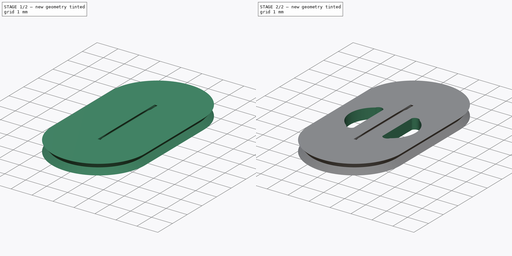
[diagram: build sequence overview — one tinted view per stage of 2, left to right]
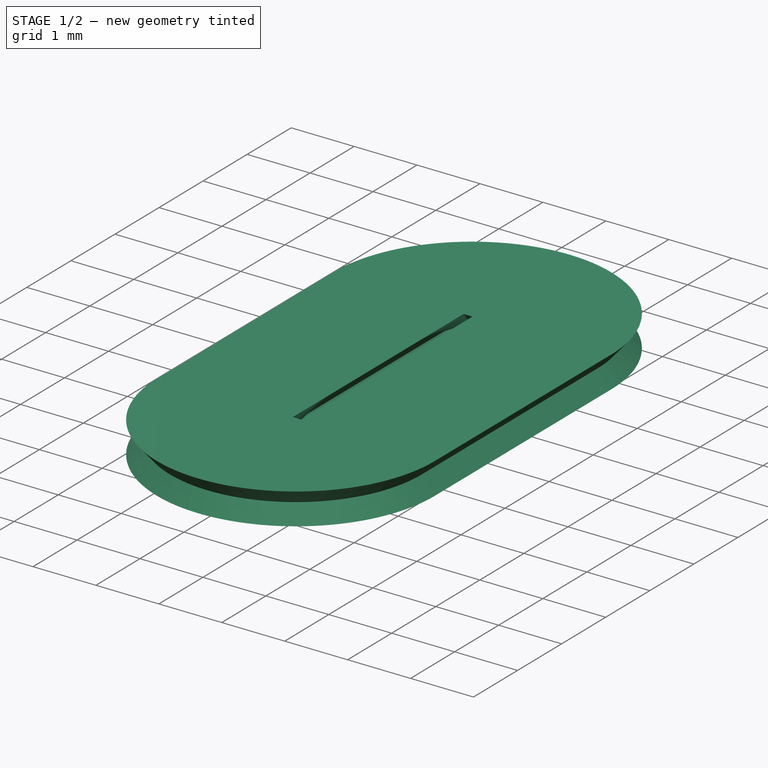
[diagram: stage 1 of 2 — iso view after this stage's code; geometry added in this stage tinted green]
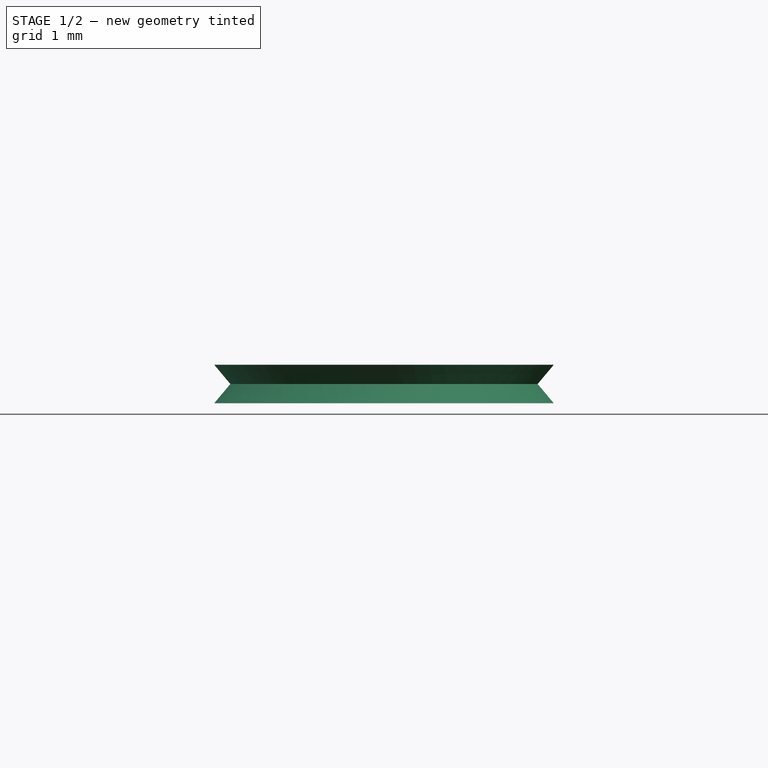
[diagram: stage 1 of 2 — front view after this stage's code; geometry added in this stage tinted green]
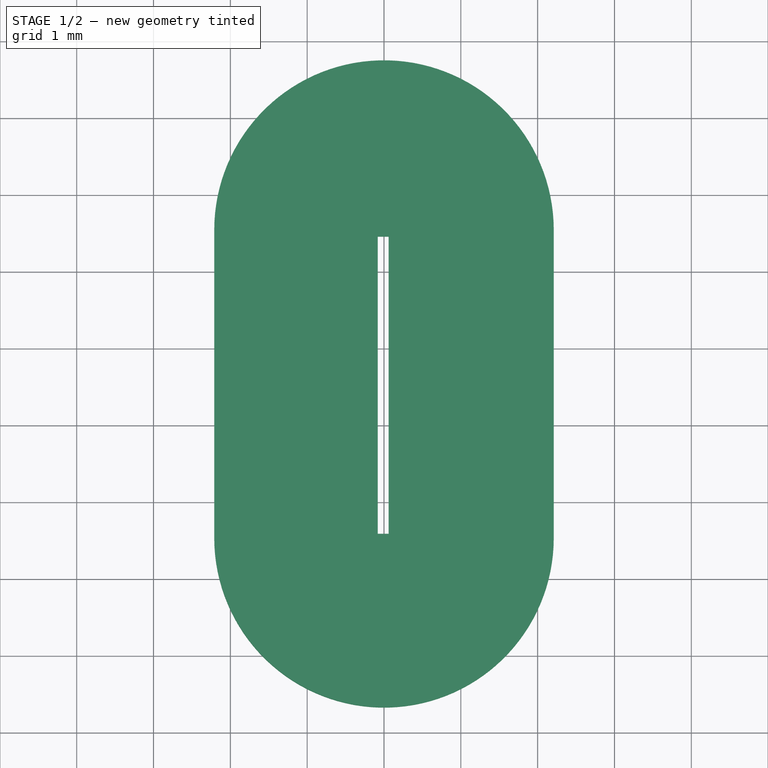
[diagram: stage 1 of 2 — top view after this stage's code; geometry added in this stage tinted green]
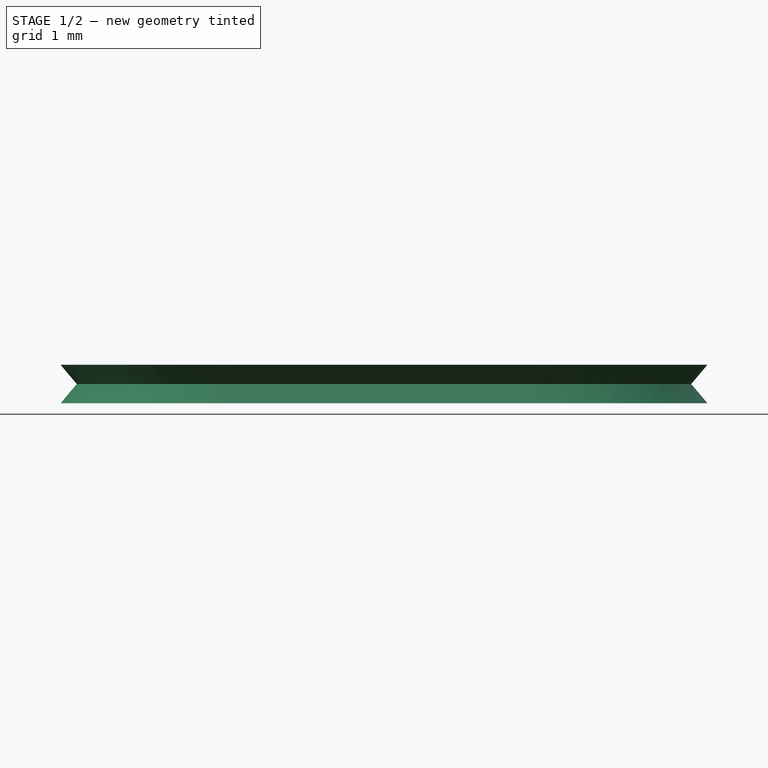
[diagram: stage 1 of 2 — right view after this stage's code; geometry added in this stage tinted green]
FCSTD DOCUMENT  (FreeCAD 0.20R29410 (Git))
Label: uphandle
License: All rights reserved
LicenseURL: http://en.wikipedia.org/wiki/All_rights_reserved
objects: Sketcher::SketchObject×2, PartDesign::Pad×1, PartDesign::Pocket×1, PartDesign::Body×1
note: 7 computed .brp shape members not serialized (recipe doc carries the construction recipe); baked Part::Feature solids carry a one-line shape summary decoded from their .brp

FEATURE [Sketcher::SketchObject] Sketch
  FullyConstrained = false
  MapMode = 5
  Support = -> [XY_Plane]
  sketch-geometry (16):
    g0: ArcOfCircle CenterX=0 CenterY=2.53837 CenterZ=0 NormalX=0 NormalY=0 NormalZ=1 AngleXU=0 Radius=2 StartAngle=0 EndAngle=3.14159
    g1: ArcOfCircle CenterX=0 CenterY=-1.46163 CenterZ=0 NormalX=0 NormalY=0 NormalZ=1 AngleXU=0 Radius=2 StartAngle=3.14159 EndAngle=6.28319
    g2: LineSegment StartX=-2 StartY=2.53837 StartZ=0 EndX=-2 EndY=-1.46163 EndZ=0
    g3: LineSegment StartX=2 StartY=-1.46163 StartZ=0 EndX=2 EndY=2.53837 EndZ=0
    g4: ArcOfCircle CenterX=-0.135939 CenterY=2.51492 CenterZ=0 NormalX=0 NormalY=0 NormalZ=1 AngleXU=0 Radius=0.154718 StartAngle=1.5708 EndAngle=3.14159
    g5: LineSegment StartX=-0.135939 StartY=2.66964 StartZ=0 EndX=0.114686 EndY=2.66964 EndZ=0
    g6: ArcOfCircle CenterX=0.114686 CenterY=2.51492 CenterZ=0 NormalX=0 NormalY=0 NormalZ=1 AngleXU=0 Radius=0.154718 StartAngle=-9e-16 EndAngle=1.5708
    g7: LineSegment StartX=0.269404 StartY=2.51492 StartZ=0 EndX=0.269404 EndY=-1.47133 EndZ=0
    g8: ArcOfCircle CenterX=0.114686 CenterY=-1.47133 CenterZ=0 NormalX=0 NormalY=0 NormalZ=1 AngleXU=0 Radius=0.154718 StartAngle=4.71239 EndAngle=6.28319
    g9: LineSegment StartX=0.114686 StartY=-1.62605 StartZ=0 EndX=-0.135939 EndY=-1.62605 EndZ=0
    g10: ArcOfCircle CenterX=-0.135939 CenterY=-1.47133 CenterZ=0 NormalX=0 NormalY=0 NormalZ=1 AngleXU=0 Radius=0.154718 StartAngle=3.14159 EndAngle=4.71239
    g11: LineSegment StartX=-0.290657 StartY=-1.47133 StartZ=0 EndX=-0.290657 EndY=2.51492 EndZ=0
    g12: GeomPoint X=-0.290657 Y=2.66964 Z=0
    g13: GeomPoint X=0.269404 Y=-1.62605 Z=0
    g14: GeomPoint X=-0.135841 Y=-1.62634 Z=0
    g15: GeomPoint X=0.162801 Y=-1.72894 Z=0
  constraints (29):
    c: Tangent(g0,g2) = -1.5708
    c: Tangent(g2,g1) = -1.5708
    c: Tangent(g1,g3) = -1.5708
    c: Tangent(g3,g0) = -1.5708
    c: Equal(g0,g1)
    c: PointOnObject(g0,g-2)
    c: PointOnObject(g1,g-2)
    c: Radius(g0) = 2
    c: DistanceY(g3,g3) = 4
    c: Block(g0)
    c: Tangent(g4,g5) = 1.5708
    c: Tangent(g5,g6) = 1.5708
    c: Tangent(g6,g7) = 1.5708
    c: Tangent(g7,g8) = 1.5708
    c: Tangent(g8,g9) = 1.5708
    c: Tangent(g9,g10) = 1.5708
    c: Tangent(g10,g11) = 1.5708
    c: Tangent(g11,g4) = 1.5708
    c: Horizontal(g5)
    c: Horizontal(g9)
    c: Vertical(g7)
    c: Vertical(g11)
    c: Equal(g4,g6)
    c: Equal(g6,g8)
    c: Equal(g8,g10)
    c: PointOnObject(g12,g5)
    c: PointOnObject(g12,g11)
    c: PointOnObject(g13,g7)
    c: PointOnObject(g13,g9)
FEATURE [PartDesign::Pad] Pad
  Direction = (0,0,1)
  Length = 0.5
  Length2 = 10
  Midplane = true
  Profile = -> Sketch
  ReferenceAxis = -> Sketch [N_Axis]
  Refine = true
  TaperAngle = 40
  Type = 0
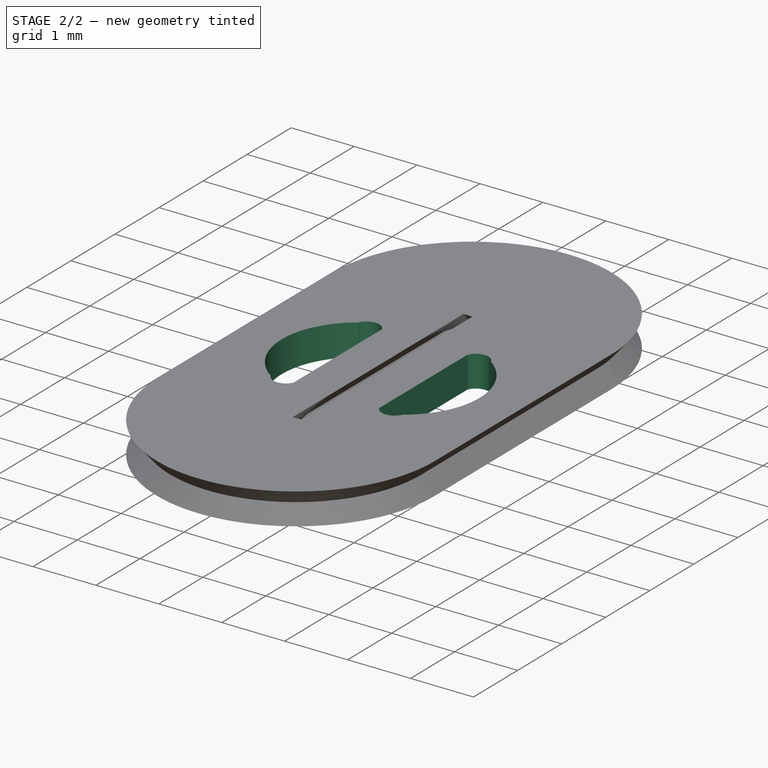
[diagram: stage 2 of 2 — iso view after this stage's code; geometry added in this stage tinted green]
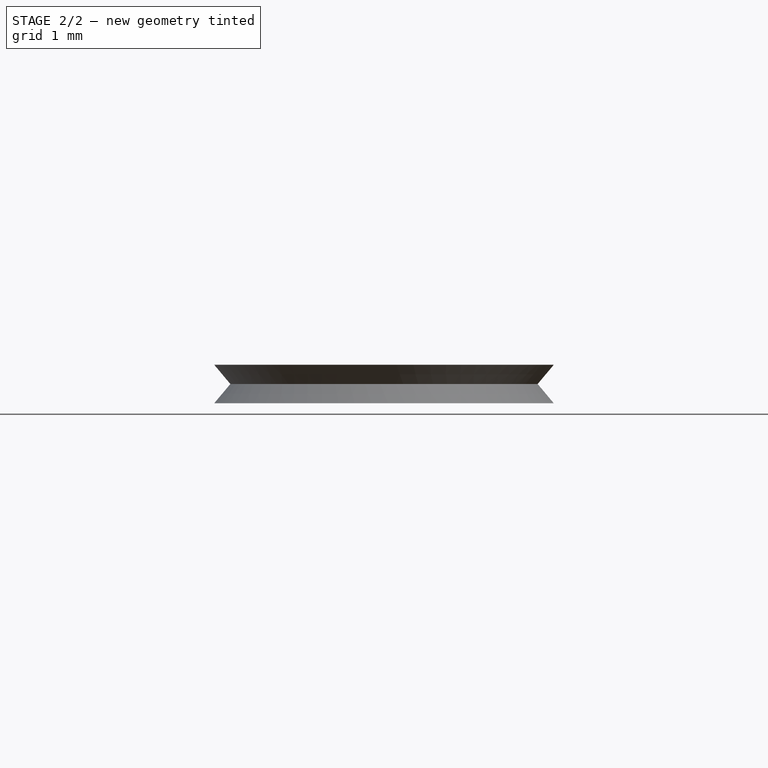
[diagram: stage 2 of 2 — front view after this stage's code; geometry added in this stage tinted green]
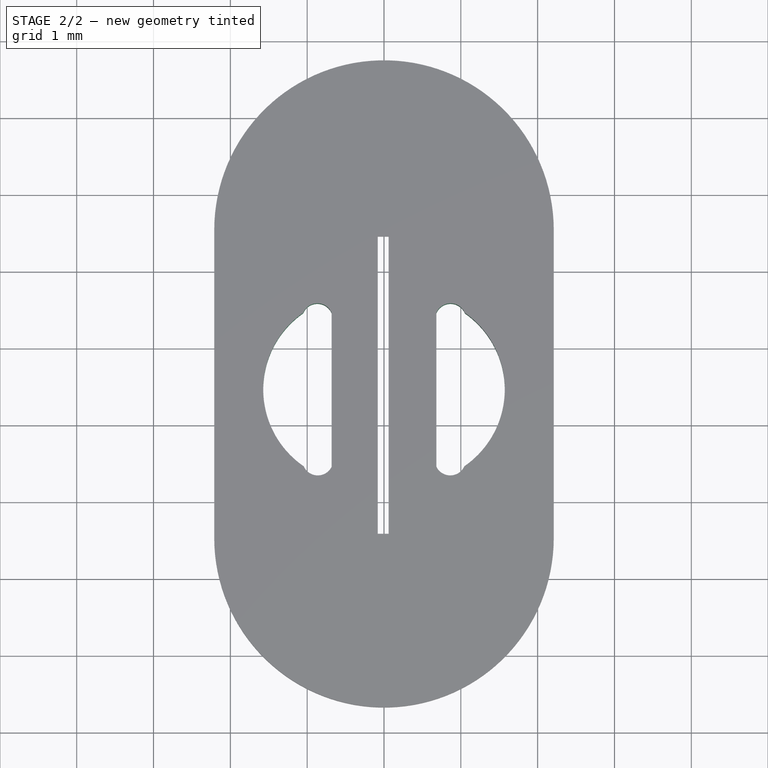
[diagram: stage 2 of 2 — top view after this stage's code; geometry added in this stage tinted green]
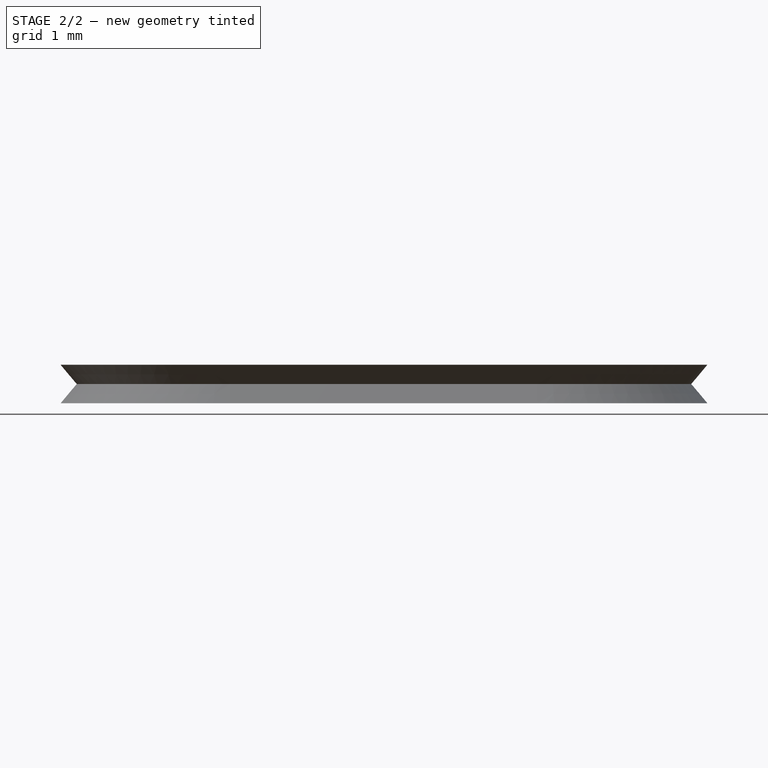
[diagram: stage 2 of 2 — right view after this stage's code; geometry added in this stage tinted green]
FEATURE [Sketcher::SketchObject] Sketch001
  FullyConstrained = false
  MapMode = 5
  Placement = pos=(0,0,0.25) rot=(0,0,1;0rad)
  Support = -> [Pad]
  sketch-geometry (10):
    g0: LineSegment StartX=-0.681278 StartY=1.45879 StartZ=0 EndX=-0.681278 EndY=-0.541211 EndZ=0
    g1: GeomPoint X=-0.081278 Y=2.45879 Z=0
    g2: ArcOfCircle CenterX=-0.866812 CenterY=1.38411 CenterZ=0 NormalX=0 NormalY=0 NormalZ=1 AngleXU=0 Radius=0.2 StartAngle=0.382679 EndAngle=2.74664
    g3: ArcOfCircle CenterX=-0.862194 CenterY=-0.45595 CenterZ=0 NormalX=0 NormalY=0 NormalZ=1 AngleXU=0 Radius=0.2 StartAngle=3.56082 EndAngle=5.84278
    g4: ArcOfCircle CenterX=-0.35747 CenterY=0.46411 CenterZ=0 NormalX=0 NormalY=0 NormalZ=1 AngleXU=0 Radius=1.21469 StartAngle=2.17888 EndAngle=4.11085
    g5: LineSegment StartX=0 StartY=2.45729 StartZ=0 EndX=0 EndY=-0.045244 EndZ=0
    g6: LineSegment StartX=0.681278 StartY=1.45879 StartZ=0 EndX=0.681278 EndY=-0.541211 EndZ=0
    g7: ArcOfCircle CenterX=0.866812 CenterY=1.38411 CenterZ=0 NormalX=0 NormalY=0 NormalZ=1 AngleXU=0 Radius=0.2 StartAngle=0.394952 EndAngle=2.75891
    g8: ArcOfCircle CenterX=0.862194 CenterY=-0.45595 CenterZ=0 NormalX=0 NormalY=0 NormalZ=1 AngleXU=0 Radius=0.2 StartAngle=3.58199 EndAngle=5.86395
    g9: ArcOfCircle CenterX=0.35747 CenterY=0.46411 CenterZ=0 NormalX=0 NormalY=0 NormalZ=1 AngleXU=0 Radius=1.21469 StartAngle=5.31393 EndAngle=7.2459
  constraints (20):
    c: Vertical(g0)
    c: DistanceY(g0,g0) = 2
    c: DistanceY(g0,g1) = 1
    c: DistanceX(g1) = -0.081278
    c: DistanceY(g1) = 2.45879
    c: DistanceX(g0,g1) = 0.6
    c: Coincident(g2,g0)
    c: Radius(g2) = 0.2
    c: Coincident(g3,g0)
    c: Radius(g3) = 0.2
    c: Coincident(g4,g2)
    c: Coincident(g4,g3)
    c: PointOnObject(g5,g-2)
    c: PointOnObject(g5,g-2)
    c: Coincident(g7,g6)
    c: Radius(g7) = 0.2
    c: Coincident(g8,g6)
    c: Radius(g8) = 0.2
    c: Coincident(g9,g7)
    c: Coincident(g9,g8)
FEATURE [PartDesign::Pocket] Pocket
  BaseFeature = -> Pad
  Direction = (0,0,-1)
  Length = 1
  Length2 = 5
  Profile = -> Sketch001
  ReferenceAxis = -> Sketch001 [N_Axis]
  Refine = true
  Type = 0
FEATURE [PartDesign::Body] Body
  Group = -> [Sketch,Pad,Sketch001,Pocket]
  Origin = -> Origin
  Tip = -> Pocket
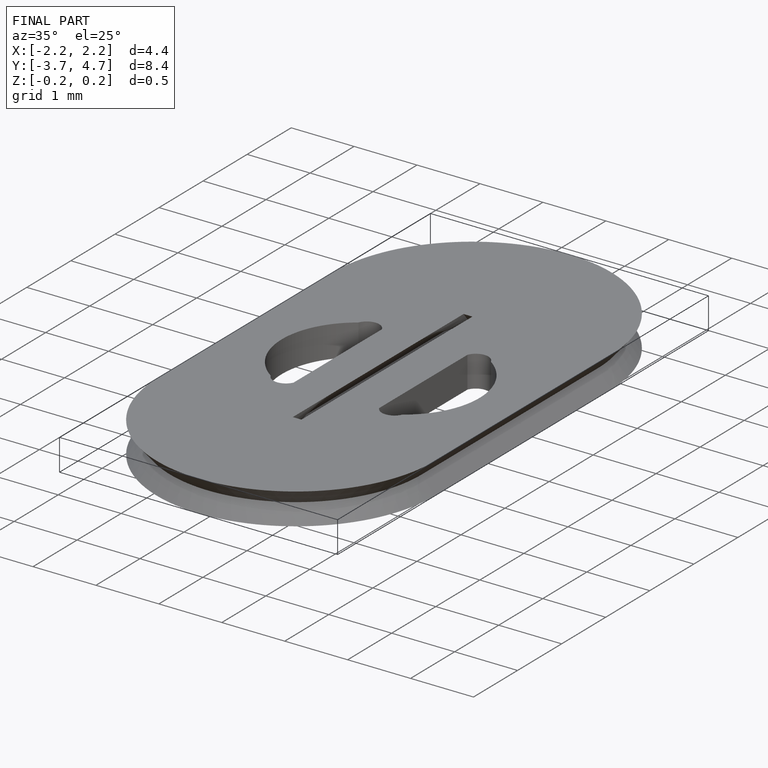
[diagram: finished part — iso view with bounding-box wireframe]
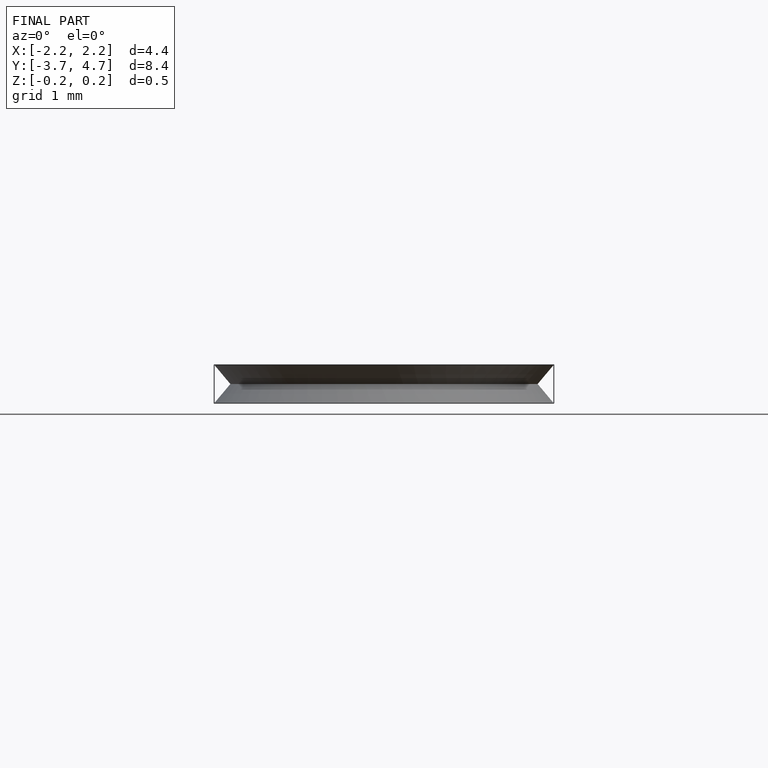
[diagram: finished part — front view with bounding-box wireframe]
